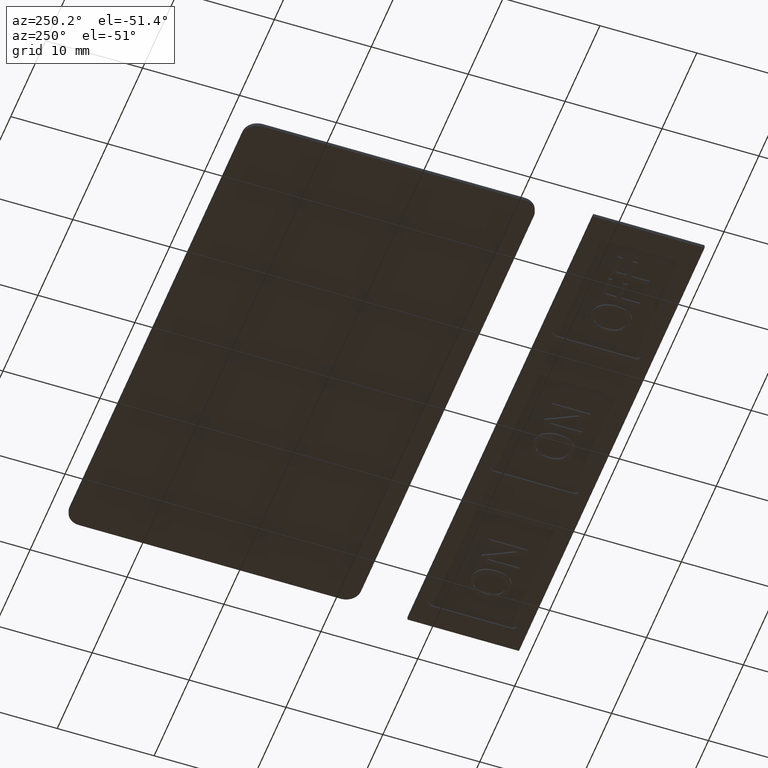
[diagram: clean part render]
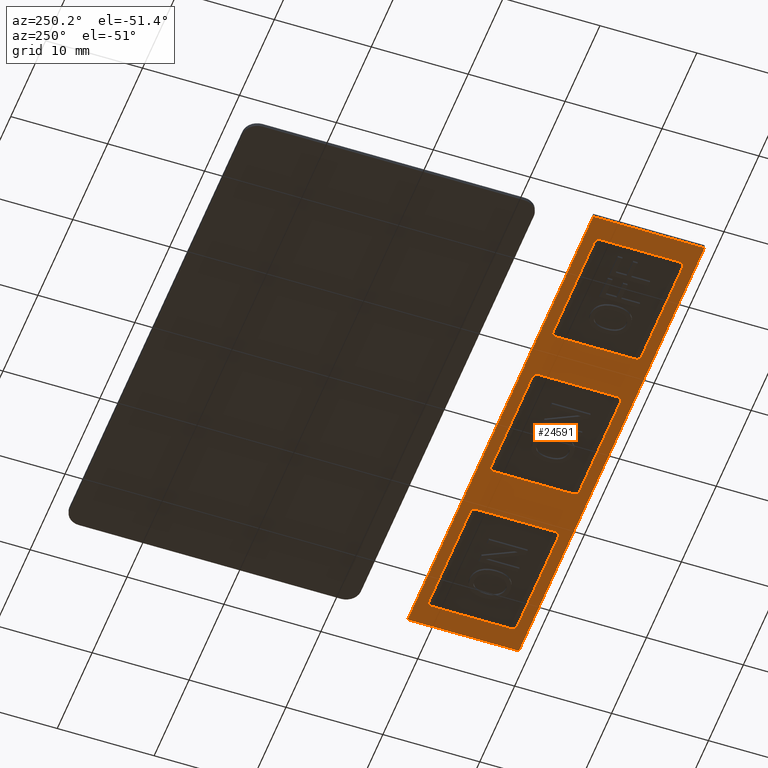
[diagram: same view with one face highlighted and labeled with its STEP entity id]
A machine part, auxiliary view. The second image highlights one B-rep face of the part: STEP entity #24591.
In plain terms, the highlighted planar face has unit normal (0, -0, -1).
Its self-contained STEP definition (entity closure, byte-faithful):
#69=FACE_BOUND('',#7195,.T.);
#70=FACE_BOUND('',#7196,.T.);
#71=FACE_BOUND('',#7197,.T.);
#313=PLANE('',#27511);
#2027=LINE('',#42671,#3674);
#2028=LINE('',#42673,#3675);
#2029=LINE('',#42675,#3676);
#2030=LINE('',#42676,#3677);
#2031=LINE('',#42679,#3678);
#2032=LINE('',#42683,#3679);
#2033=LINE('',#42687,#3680);
#2034=LINE('',#42691,#3681);
#2035=LINE('',#42695,#3682);
#2036=LINE('',#42699,#3683);
#2037=LINE('',#42703,#3684);
#2038=LINE('',#42707,#3685);
#2039=LINE('',#42711,#3686);
#2040=LINE('',#42715,#3687);
#2041=LINE('',#42719,#3688);
#2042=LINE('',#42723,#3689);
#3674=VECTOR('',#34562,11.5);
#3675=VECTOR('',#34563,53.227375755189);
#3676=VECTOR('',#34564,11.5);
#3677=VECTOR('',#34565,53.227375755189);
#3678=VECTOR('',#34566,8.2);
#3679=VECTOR('',#34569,11.9);
#3680=VECTOR('',#34572,8.2);
#3681=VECTOR('',#34575,11.9);
#3682=VECTOR('',#34578,11.9);
#3683=VECTOR('',#34581,8.2);
#3684=VECTOR('',#34584,11.9);
#3685=VECTOR('',#34587,8.2);
#3686=VECTOR('',#34590,8.2);
#3687=VECTOR('',#34593,11.9);
#3688=VECTOR('',#34596,8.2);
#3689=VECTOR('',#34599,11.9);
#5869=FACE_OUTER_BOUND('',#7194,.T.);
#7194=EDGE_LOOP('',(#21422,#21423,#21424,#21425));
#7195=EDGE_LOOP('',(#21426,#21427,#21428,#21429,#21430,#21431,#21432,#21433));
#7196=EDGE_LOOP('',(#21434,#21435,#21436,#21437,#21438,#21439,#21440,#21441));
#7197=EDGE_LOOP('',(#21442,#21443,#21444,#21445,#21446,#21447,#21448,#21449));
#9073=CIRCLE('',#27512,0.45);
#9074=CIRCLE('',#27513,0.45);
#9075=CIRCLE('',#27514,0.45);
#9076=CIRCLE('',#27515,0.45);
#9077=CIRCLE('',#27516,0.45);
#9078=CIRCLE('',#27517,0.45);
#9079=CIRCLE('',#27518,0.45);
#9080=CIRCLE('',#27519,0.45);
#9081=CIRCLE('',#27520,0.45);
#9082=CIRCLE('',#27521,0.45);
#9083=CIRCLE('',#27522,0.45);
#9084=CIRCLE('',#27523,0.45);
#11233=VERTEX_POINT('',#42669);
#11234=VERTEX_POINT('',#42670);
#11235=VERTEX_POINT('',#42672);
#11236=VERTEX_POINT('',#42674);
#11237=VERTEX_POINT('',#42677);
#11238=VERTEX_POINT('',#42678);
#11239=VERTEX_POINT('',#42680);
#11240=VERTEX_POINT('',#42682);
#11241=VERTEX_POINT('',#42684);
#11242=VERTEX_POINT('',#42686);
#11243=VERTEX_POINT('',#42688);
#11244=VERTEX_POINT('',#42690);
#11245=VERTEX_POINT('',#42693);
#11246=VERTEX_POINT('',#42694);
#11247=VERTEX_POINT('',#42696);
#11248=VERTEX_POINT('',#42698);
#11249=VERTEX_POINT('',#42700);
#11250=VERTEX_POINT('',#42702);
#11251=VERTEX_POINT('',#42704);
#11252=VERTEX_POINT('',#42706);
#11253=VERTEX_POINT('',#42709);
#11254=VERTEX_POINT('',#42710);
#11255=VERTEX_POINT('',#42712);
#11256=VERTEX_POINT('',#42714);
#11257=VERTEX_POINT('',#42716);
#11258=VERTEX_POINT('',#42718);
#11259=VERTEX_POINT('',#42720);
#11260=VERTEX_POINT('',#42722);
#14675=EDGE_CURVE('',#11233,#11234,#2027,.T.);
#14676=EDGE_CURVE('',#11234,#11235,#2028,.T.);
#14677=EDGE_CURVE('',#11235,#11236,#2029,.T.);
#14678=EDGE_CURVE('',#11236,#11233,#2030,.T.);
#14679=EDGE_CURVE('',#11237,#11238,#2031,.T.);
#14680=EDGE_CURVE('',#11238,#11239,#9073,.T.);
#14681=EDGE_CURVE('',#11239,#11240,#2032,.T.);
#14682=EDGE_CURVE('',#11240,#11241,#9074,.T.);
#14683=EDGE_CURVE('',#11241,#11242,#2033,.T.);
#14684=EDGE_CURVE('',#11242,#11243,#9075,.T.);
#14685=EDGE_CURVE('',#11243,#11244,#2034,.T.);
#14686=EDGE_CURVE('',#11244,#11237,#9076,.T.);
#14687=EDGE_CURVE('',#11245,#11246,#2035,.T.);
#14688=EDGE_CURVE('',#11246,#11247,#9077,.T.);
#14689=EDGE_CURVE('',#11247,#11248,#2036,.T.);
#14690=EDGE_CURVE('',#11248,#11249,#9078,.T.);
#14691=EDGE_CURVE('',#11249,#11250,#2037,.T.);
#14692=EDGE_CURVE('',#11250,#11251,#9079,.T.);
#14693=EDGE_CURVE('',#11251,#11252,#2038,.T.);
#14694=EDGE_CURVE('',#11252,#11245,#9080,.T.);
#14695=EDGE_CURVE('',#11253,#11254,#2039,.T.);
#14696=EDGE_CURVE('',#11254,#11255,#9081,.T.);
#14697=EDGE_CURVE('',#11255,#11256,#2040,.T.);
#14698=EDGE_CURVE('',#11256,#11257,#9082,.T.);
#14699=EDGE_CURVE('',#11257,#11258,#2041,.T.);
#14700=EDGE_CURVE('',#11258,#11259,#9083,.T.);
#14701=EDGE_CURVE('',#11259,#11260,#2042,.T.);
#14702=EDGE_CURVE('',#11260,#11253,#9084,.T.);
#21422=ORIENTED_EDGE('',*,*,#14675,.T.);
#21423=ORIENTED_EDGE('',*,*,#14676,.T.);
#21424=ORIENTED_EDGE('',*,*,#14677,.T.);
#21425=ORIENTED_EDGE('',*,*,#14678,.T.);
#21426=ORIENTED_EDGE('',*,*,#14679,.T.);
#21427=ORIENTED_EDGE('',*,*,#14680,.T.);
#21428=ORIENTED_EDGE('',*,*,#14681,.T.);
#21429=ORIENTED_EDGE('',*,*,#14682,.T.);
#21430=ORIENTED_EDGE('',*,*,#14683,.T.);
#21431=ORIENTED_EDGE('',*,*,#14684,.T.);
#21432=ORIENTED_EDGE('',*,*,#14685,.T.);
#21433=ORIENTED_EDGE('',*,*,#14686,.T.);
#21434=ORIENTED_EDGE('',*,*,#14687,.T.);
#21435=ORIENTED_EDGE('',*,*,#14688,.T.);
#21436=ORIENTED_EDGE('',*,*,#14689,.T.);
#21437=ORIENTED_EDGE('',*,*,#14690,.T.);
#21438=ORIENTED_EDGE('',*,*,#14691,.T.);
#21439=ORIENTED_EDGE('',*,*,#14692,.T.);
#21440=ORIENTED_EDGE('',*,*,#14693,.T.);
#21441=ORIENTED_EDGE('',*,*,#14694,.T.);
#21442=ORIENTED_EDGE('',*,*,#14695,.T.);
#21443=ORIENTED_EDGE('',*,*,#14696,.T.);
#21444=ORIENTED_EDGE('',*,*,#14697,.T.);
#21445=ORIENTED_EDGE('',*,*,#14698,.T.);
#21446=ORIENTED_EDGE('',*,*,#14699,.T.);
#21447=ORIENTED_EDGE('',*,*,#14700,.T.);
#21448=ORIENTED_EDGE('',*,*,#14701,.T.);
#21449=ORIENTED_EDGE('',*,*,#14702,.T.);
#24591=ADVANCED_FACE('',(#5869,#69,#70,#71),#313,.T.);
#27511=AXIS2_PLACEMENT_3D('',#42668,#34560,#34561);
#27512=AXIS2_PLACEMENT_3D('',#42681,#34567,#34568);
#27513=AXIS2_PLACEMENT_3D('',#42685,#34570,#34571);
#27514=AXIS2_PLACEMENT_3D('',#42689,#34573,#34574);
#27515=AXIS2_PLACEMENT_3D('',#42692,#34576,#34577);
#27516=AXIS2_PLACEMENT_3D('',#42697,#34579,#34580);
#27517=AXIS2_PLACEMENT_3D('',#42701,#34582,#34583);
#27518=AXIS2_PLACEMENT_3D('',#42705,#34585,#34586);
#27519=AXIS2_PLACEMENT_3D('',#42708,#34588,#34589);
#27520=AXIS2_PLACEMENT_3D('',#42713,#34591,#34592);
#27521=AXIS2_PLACEMENT_3D('',#42717,#34594,#34595);
#27522=AXIS2_PLACEMENT_3D('',#42721,#34597,#34598);
#27523=AXIS2_PLACEMENT_3D('',#42724,#34600,#34601);
#34560=DIRECTION('center_axis',(3.5619655373375E-16,-3.41278292167792E-17,
-1.));
#34561=DIRECTION('ref_axis',(1.,1.4210854715202E-15,3.5527136788005E-16));
#34562=DIRECTION('',(4.77710216999518E-17,1.,1.03039885219751E-17));
#34563=DIRECTION('',(1.,5.70981785654371E-17,-1.19117678683756E-15));
#34564=DIRECTION('',(-4.77710216999518E-17,-1.,-1.03039885219751E-17));
#34565=DIRECTION('',(-1.,-5.70981785654371E-17,1.19117678683756E-15));
#34566=DIRECTION('',(-7.24558038908854E-16,1.,-3.41278292167795E-17));
#34567=DIRECTION('center_axis',(-3.5619655373375E-16,3.41278292167792E-17,
1.));
#34568=DIRECTION('ref_axis',(-7.24558038908854E-16,1.,-3.41278292167795E-17));
#34569=DIRECTION('',(-1.,7.6817880092329E-16,-3.5619655373375E-16));
#34570=DIRECTION('center_axis',(-3.5619655373375E-16,3.41278292167792E-17,
1.));
#34571=DIRECTION('ref_axis',(-1.,-7.24558038908854E-16,-3.5619655373375E-16));
#34572=DIRECTION('',(-3.58586375359591E-16,-1.,3.41278292167791E-17));
#34573=DIRECTION('center_axis',(-3.5619655373375E-16,3.41278292167792E-17,
1.));
#34574=DIRECTION('ref_axis',(7.24558038908854E-16,-1.,3.41278292167795E-17));
#34575=DIRECTION('',(1.,-7.68178800923289E-16,3.5619655373375E-16));
#34576=DIRECTION('center_axis',(-3.5619655373375E-16,3.41278292167792E-17,
1.));
#34577=DIRECTION('ref_axis',(1.,7.24558038908854E-16,3.5619655373375E-16));
#34578=DIRECTION('',(1.,7.24558038908854E-16,3.5619655373375E-16));
#34579=DIRECTION('center_axis',(-3.5619655373375E-16,3.41278292167792E-17,
1.));
#34580=DIRECTION('ref_axis',(1.,7.24558038908854E-16,3.5619655373375E-16));
#34581=DIRECTION('',(3.58586375359591E-16,1.,-3.41278292167791E-17));
#34582=DIRECTION('center_axis',(-3.5619655373375E-16,3.41278292167792E-17,
1.));
#34583=DIRECTION('ref_axis',(-7.24558038908854E-16,1.,-3.41278292167795E-17));
#34584=DIRECTION('',(-1.,-7.24558038908854E-16,-3.5619655373375E-16));
#34585=DIRECTION('center_axis',(-3.5619655373375E-16,3.41278292167792E-17,
1.));
#34586=DIRECTION('ref_axis',(-1.,-7.24558038908854E-16,-3.5619655373375E-16));
#34587=DIRECTION('',(7.24558038908854E-16,-1.,3.41278292167795E-17));
#34588=DIRECTION('center_axis',(-3.5619655373375E-16,3.41278292167792E-17,
1.));
#34589=DIRECTION('ref_axis',(7.24558038908854E-16,-1.,3.41278292167795E-17));
#34590=DIRECTION('',(-7.24558038908854E-16,1.,-3.41278292167795E-17));
#34591=DIRECTION('center_axis',(-3.5619655373375E-16,3.41278292167792E-17,
1.));
#34592=DIRECTION('ref_axis',(-7.24558038908854E-16,1.,-3.41278292167795E-17));
#34593=DIRECTION('',(-1.,7.68178800923289E-16,-3.5619655373375E-16));
#34594=DIRECTION('center_axis',(-3.5619655373375E-16,3.41278292167792E-17,
1.));
#34595=DIRECTION('ref_axis',(-1.,-7.24558038908854E-16,-3.5619655373375E-16));
#34596=DIRECTION('',(1.26613024604308E-15,-1.,3.41278292167797E-17));
#34597=DIRECTION('center_axis',(-3.5619655373375E-16,3.41278292167792E-17,
1.));
#34598=DIRECTION('ref_axis',(7.24558038908854E-16,-1.,3.41278292167795E-17));
#34599=DIRECTION('',(1.,-7.6817880092329E-16,3.5619655373375E-16));
#34600=DIRECTION('center_axis',(-3.5619655373375E-16,3.41278292167792E-17,
1.));
#34601=DIRECTION('ref_axis',(1.,7.24558038908854E-16,3.5619655373375E-16));
#42668=CARTESIAN_POINT('Origin',(-0.0647579174986808,-93.4500000000002,
0.175000000000054));
#42669=CARTESIAN_POINT('',(-26.6784457950932,-99.2000000000002,0.175000000000045));
#42670=CARTESIAN_POINT('',(-26.6784457950932,-87.7000000000002,0.175000000000045));
#42671=CARTESIAN_POINT('',(-26.6784457950932,-99.2000000000002,0.175000000000045));
#42672=CARTESIAN_POINT('',(26.5489299600958,-87.7000000000002,0.174999999999983));
#42673=CARTESIAN_POINT('',(-26.6784457950932,-87.7000000000002,0.175000000000045));
#42674=CARTESIAN_POINT('',(26.5489299600958,-99.2000000000002,0.174999999999983));
#42675=CARTESIAN_POINT('',(26.5489299600958,-87.7000000000002,0.174999999999983));
#42676=CARTESIAN_POINT('',(26.5489299600958,-99.2000000000002,0.174999999999983));
#42677=CARTESIAN_POINT('',(24.2000000000005,-97.5500000000002,0.174999999999983));
#42678=CARTESIAN_POINT('',(24.2000000000005,-89.3500000000002,0.174999999999983));
#42679=CARTESIAN_POINT('',(24.2000000000005,-91.4000000000002,0.175000000000063));
#42680=CARTESIAN_POINT('',(23.7500000000005,-88.9000000000002,0.174999999999983));
#42681=CARTESIAN_POINT('Origin',(23.7500000000005,-89.3500000000002,0.175000000000063));
#42682=CARTESIAN_POINT('',(11.8500000000005,-88.9000000000002,0.175000000000001));
#42683=CARTESIAN_POINT('',(5.89262104125092,-88.9000000000002,0.175000000000054));
#42684=CARTESIAN_POINT('',(11.4000000000005,-89.3500000000002,0.175000000000001));
#42685=CARTESIAN_POINT('Origin',(11.8500000000005,-89.3500000000002,0.175000000000063));
#42686=CARTESIAN_POINT('',(11.4000000000005,-97.5500000000002,0.175000000000001));
#42687=CARTESIAN_POINT('',(11.4000000000005,-95.5000000000002,0.175000000000063));
#42688=CARTESIAN_POINT('',(11.8500000000005,-98.0000000000002,0.175000000000001));
#42689=CARTESIAN_POINT('Origin',(11.8500000000005,-97.5500000000002,0.175000000000063));
#42690=CARTESIAN_POINT('',(23.7500000000005,-98.0000000000002,0.174999999999983));
#42691=CARTESIAN_POINT('',(11.8426210412509,-98.0000000000002,0.175000000000063));
#42692=CARTESIAN_POINT('Origin',(23.7500000000005,-97.5500000000002,0.175000000000063));
#42693=CARTESIAN_POINT('',(-5.94999999999948,-98.0000000000002,0.175000000000018));
#42694=CARTESIAN_POINT('',(5.95000000000052,-98.0000000000002,0.175000000000001));
#42695=CARTESIAN_POINT('',(2.94262104125092,-98.0000000000002,0.175000000000054));
#42696=CARTESIAN_POINT('',(6.40000000000052,-97.5500000000002,0.175000000000001));
#42697=CARTESIAN_POINT('Origin',(5.95000000000052,-97.5500000000002,0.175000000000054));
#42698=CARTESIAN_POINT('',(6.40000000000052,-89.3500000000002,0.175000000000001));
#42699=CARTESIAN_POINT('',(6.40000000000052,-91.4000000000002,0.175000000000054));
#42700=CARTESIAN_POINT('',(5.95000000000052,-88.9000000000002,0.175000000000001));
#42701=CARTESIAN_POINT('Origin',(5.95000000000052,-89.3500000000002,0.175000000000054));
#42702=CARTESIAN_POINT('',(-5.94999999999948,-88.9000000000002,0.175000000000018));
#42703=CARTESIAN_POINT('',(-3.00737895874908,-88.9000000000002,0.175000000000054));
#42704=CARTESIAN_POINT('',(-6.39999999999948,-89.3500000000002,0.175000000000018));
#42705=CARTESIAN_POINT('Origin',(-5.94999999999948,-89.3500000000002,0.175000000000054));
#42706=CARTESIAN_POINT('',(-6.39999999999947,-97.5500000000002,0.175000000000018));
#42707=CARTESIAN_POINT('',(-6.39999999999948,-95.5000000000002,0.175000000000054));
#42708=CARTESIAN_POINT('Origin',(-5.94999999999948,-97.5500000000002,0.175000000000054));
#42709=CARTESIAN_POINT('',(-11.3999999999995,-97.5500000000002,0.175000000000027));
#42710=CARTESIAN_POINT('',(-11.3999999999995,-89.3500000000002,0.175000000000027));
#42711=CARTESIAN_POINT('',(-11.3999999999995,-91.4000000000002,0.175000000000054));
#42712=CARTESIAN_POINT('',(-11.8499999999995,-88.9000000000002,0.175000000000027));
#42713=CARTESIAN_POINT('Origin',(-11.8499999999995,-89.3500000000002,0.175000000000054));
#42714=CARTESIAN_POINT('',(-23.7499999999995,-88.9000000000002,0.175000000000036));
#42715=CARTESIAN_POINT('',(-11.9073789587491,-88.9000000000002,0.175000000000054));
#42716=CARTESIAN_POINT('',(-24.1999999999995,-89.3500000000002,0.175000000000036));
#42717=CARTESIAN_POINT('Origin',(-23.7499999999995,-89.3500000000002,0.175000000000045));
#42718=CARTESIAN_POINT('',(-24.1999999999995,-97.5500000000002,0.175000000000036));
#42719=CARTESIAN_POINT('',(-24.1999999999995,-95.5000000000002,0.175000000000045));
#42720=CARTESIAN_POINT('',(-23.7499999999995,-98.0000000000002,0.175000000000036));
#42721=CARTESIAN_POINT('Origin',(-23.7499999999995,-97.5500000000002,0.175000000000045));
#42722=CARTESIAN_POINT('',(-11.8499999999995,-98.0000000000002,0.175000000000027));
#42723=CARTESIAN_POINT('',(-5.95737895874908,-98.0000000000002,0.175000000000054));
#42724=CARTESIAN_POINT('Origin',(-11.8499999999995,-97.5500000000002,0.175000000000054));